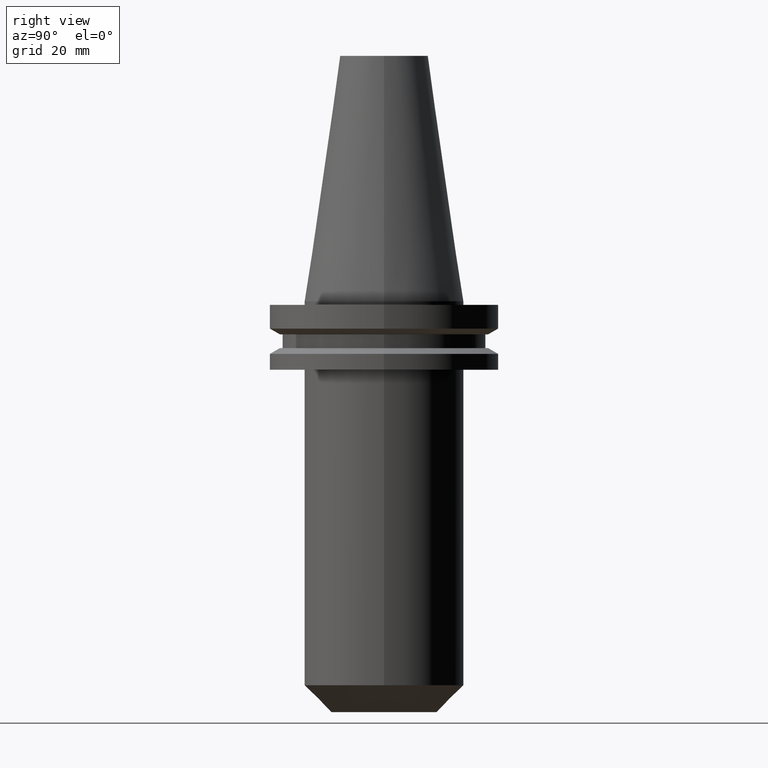
[diagram: clean part render]
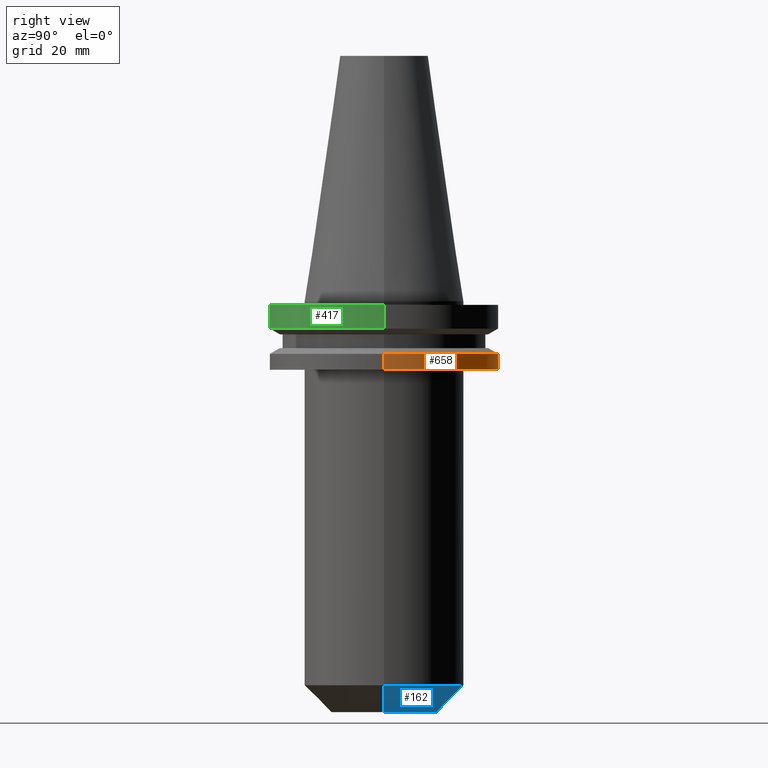
[diagram: same view with three faces highlighted in distinct colors, each labeled with its STEP entity id]
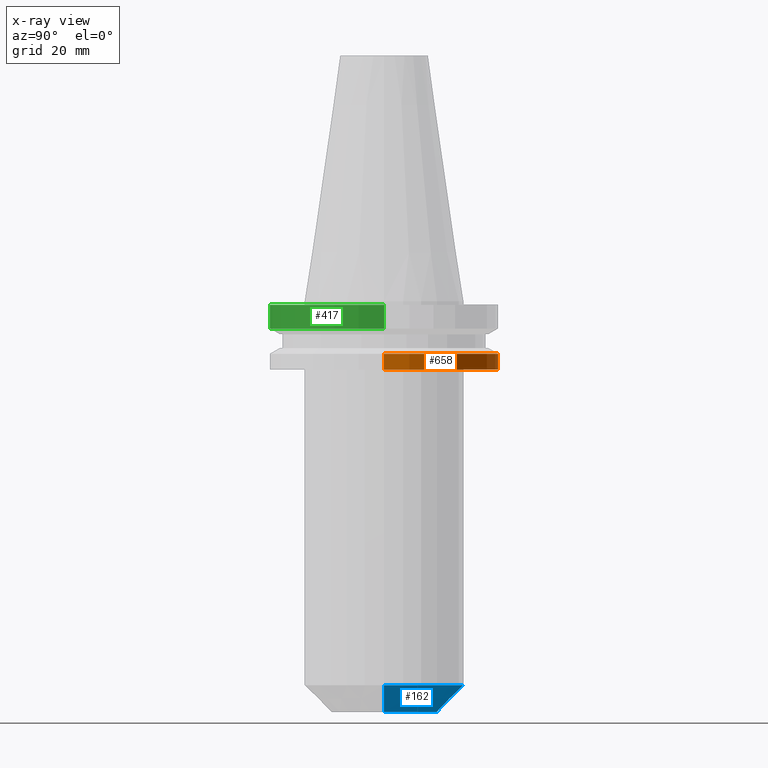
[diagram: x-ray of the same camera — body ghosted, the three highlighted faces saturated]
A machine part, right view with three faces highlighted in distinct colors.
The next image is the same camera in x-ray (body ghosted, the three faces saturated) — at least one of them is partly hidden behind the body in this view.
Their STEP definitions:

[orange] entity #658 — the highlighted cylindrical surface (partial cylindrical patch) has radius 31.75 mm, axis along (-0, -0, 1).
#1 = AXIS2_PLACEMENT_3D ( 'NONE', #332, #454, #138 ) ;
#34 = EDGE_CURVE ( 'NONE', #694, #284, #198, .T. ) ;
#66 = VECTOR ( 'NONE', #85, 1000.000000000000000 ) ;
#78 = AXIS2_PLACEMENT_3D ( 'NONE', #149, #204, #718 ) ;
#85 = DIRECTION ( 'NONE',  ( -0.000000000000000000, -0.000000000000000000, 1.000000000000000000 ) ) ;
#88 = CIRCLE ( 'NONE', #1, 31.75000000000000000 ) ;
#94 = CARTESIAN_POINT ( 'NONE',  ( -31.75000000000000000, 3.888253587292846476E-15, -14.65472339340266572 ) ) ;
#133 = DIRECTION ( 'NONE',  ( -0.000000000000000000, -0.000000000000000000, 1.000000000000000000 ) ) ;
#138 = DIRECTION ( 'NONE',  ( 1.000000000000000000, 0.000000000000000000, 0.000000000000000000 ) ) ;
#147 = VERTEX_POINT ( 'NONE', #691 ) ;
#149 = CARTESIAN_POINT ( 'NONE',  ( 0.000000000000000000, 0.000000000000000000, -19.04999999999999716 ) ) ;
#188 = FACE_OUTER_BOUND ( 'NONE', #488, .T. ) ;
#189 = CARTESIAN_POINT ( 'NONE',  ( -31.74999999999999289, 3.888253587292845687E-15, -19.04999999999999716 ) ) ;
#195 = DIRECTION ( 'NONE',  ( 1.000000000000000000, 0.000000000000000000, 0.000000000000000000 ) ) ;
#198 = CIRCLE ( 'NONE', #78, 31.74999999999999289 ) ;
#204 = DIRECTION ( 'NONE',  ( -0.000000000000000000, -0.000000000000000000, 1.000000000000000000 ) ) ;
#225 = VECTOR ( 'NONE', #133, 1000.000000000000000 ) ;
#254 = CARTESIAN_POINT ( 'NONE',  ( 31.74999999999999289, 0.000000000000000000, -19.04999999999999716 ) ) ;
#256 = CYLINDRICAL_SURFACE ( 'NONE', #259, 31.75000000000000000 ) ;
#259 = AXIS2_PLACEMENT_3D ( 'NONE', #771, #675, #195 ) ;
#284 = VERTEX_POINT ( 'NONE', #189 ) ;
#332 = CARTESIAN_POINT ( 'NONE',  ( 0.000000000000000000, 0.000000000000000000, -14.65472339340266572 ) ) ;
#368 = VERTEX_POINT ( 'NONE', #94 ) ;
#405 = EDGE_CURVE ( 'NONE', #147, #368, #88, .T. ) ;
#432 = EDGE_CURVE ( 'NONE', #694, #147, #583, .T. ) ;
#440 = CARTESIAN_POINT ( 'NONE',  ( 31.75000000000000000, 0.000000000000000000, 68.25000000000000000 ) ) ;
#454 = DIRECTION ( 'NONE',  ( -0.000000000000000000, -0.000000000000000000, 1.000000000000000000 ) ) ;
#471 = ORIENTED_EDGE ( 'NONE', *, *, #432, .F. ) ;
#488 = EDGE_LOOP ( 'NONE', ( #533, #768, #738, #471 ) ) ;
#533 = ORIENTED_EDGE ( 'NONE', *, *, #34, .T. ) ;
#549 = CARTESIAN_POINT ( 'NONE',  ( -31.75000000000000000, 3.888253587292846476E-15, 68.25000000000000000 ) ) ;
#554 = LINE ( 'NONE', #549, #225 ) ;
#583 = LINE ( 'NONE', #440, #66 ) ;
#658 = ADVANCED_FACE ( 'NONE', ( #188 ), #256, .T. ) ;
#675 = DIRECTION ( 'NONE',  ( -0.000000000000000000, -0.000000000000000000, 1.000000000000000000 ) ) ;
#691 = CARTESIAN_POINT ( 'NONE',  ( 31.75000000000000000, 0.000000000000000000, -14.65472339340266572 ) ) ;
#694 = VERTEX_POINT ( 'NONE', #254 ) ;
#718 = DIRECTION ( 'NONE',  ( 1.000000000000000000, 0.000000000000000000, 0.000000000000000000 ) ) ;
#725 = EDGE_CURVE ( 'NONE', #284, #368, #554, .T. ) ;
#738 = ORIENTED_EDGE ( 'NONE', *, *, #405, .F. ) ;
#768 = ORIENTED_EDGE ( 'NONE', *, *, #725, .T. ) ;
#771 = CARTESIAN_POINT ( 'NONE',  ( 0.000000000000000000, 0.000000000000000000, 68.25000000000000000 ) ) ;

[blue] entity #162 — the highlighted conical surface has half-angle 45 deg.
#50 = CARTESIAN_POINT ( 'NONE',  ( 14.72499999999998721, 0.000000000000000000, -114.2999999999999829 ) ) ;
#82 = DIRECTION ( 'NONE',  ( -0.000000000000000000, -0.000000000000000000, 1.000000000000000000 ) ) ;
#100 = FACE_OUTER_BOUND ( 'NONE', #186, .T. ) ;
#107 = DIRECTION ( 'NONE',  ( 1.000000000000000000, 0.000000000000000000, 0.000000000000000000 ) ) ;
#119 = CIRCLE ( 'NONE', #713, 14.72499999999998721 ) ;
#130 = CARTESIAN_POINT ( 'NONE',  ( -14.72499999999998721, 1.803292411744476082E-15, -114.2999999999999829 ) ) ;
#162 = ADVANCED_FACE ( 'NONE', ( #100 ), #504, .T. ) ;
#179 = ORIENTED_EDGE ( 'NONE', *, *, #290, .T. ) ;
#186 = EDGE_LOOP ( 'NONE', ( #670, #179, #711, #190 ) ) ;
#190 = ORIENTED_EDGE ( 'NONE', *, *, #532, .F. ) ;
#196 = VECTOR ( 'NONE', #353, 1000.000000000000000 ) ;
#209 = EDGE_CURVE ( 'NONE', #314, #544, #565, .T. ) ;
#210 = VECTOR ( 'NONE', #450, 1000.000000000000000 ) ;
#222 = DIRECTION ( 'NONE',  ( 1.000000000000000000, 0.000000000000000000, 0.000000000000000000 ) ) ;
#232 = CARTESIAN_POINT ( 'NONE',  ( 0.000000000000000000, 0.000000000000000000, -106.8000000000000114 ) ) ;
#265 = CARTESIAN_POINT ( 'NONE',  ( 14.72499999999998721, 0.000000000000000000, -114.2999999999999829 ) ) ;
#285 = CARTESIAN_POINT ( 'NONE',  ( 0.000000000000000000, 0.000000000000000000, -114.2999999999999829 ) ) ;
#290 = EDGE_CURVE ( 'NONE', #390, #544, #673, .T. ) ;
#314 = VERTEX_POINT ( 'NONE', #749 ) ;
#336 = EDGE_CURVE ( 'NONE', #360, #390, #119, .T. ) ;
#341 = CARTESIAN_POINT ( 'NONE',  ( 0.000000000000000000, 0.000000000000000000, -114.2999999999999829 ) ) ;
#345 = DIRECTION ( 'NONE',  ( 1.000000000000000000, 0.000000000000000000, 0.000000000000000000 ) ) ;
#353 = DIRECTION ( 'NONE',  ( 0.7071067811865492381, 0.000000000000000000, 0.7071067811865457964 ) ) ;
#360 = VERTEX_POINT ( 'NONE', #265 ) ;
#390 = VERTEX_POINT ( 'NONE', #520 ) ;
#403 = LINE ( 'NONE', #50, #196 ) ;
#407 = CARTESIAN_POINT ( 'NONE',  ( -22.22500000000000142, 2.721777511104992849E-15, -106.8000000000000114 ) ) ;
#413 = DIRECTION ( 'NONE',  ( -0.000000000000000000, -0.000000000000000000, 1.000000000000000000 ) ) ;
#435 = AXIS2_PLACEMENT_3D ( 'NONE', #285, #660, #345 ) ;
#450 = DIRECTION ( 'NONE',  ( -0.7071067811865492381, 8.659560562354953812E-17, 0.7071067811865457964 ) ) ;
#504 = CONICAL_SURFACE ( 'NONE', #435, 14.72499999999998721, 0.7853981633974507215 ) ;
#520 = CARTESIAN_POINT ( 'NONE',  ( -14.72499999999998721, 2.262534961424734465E-15, -114.2999999999999829 ) ) ;
#532 = EDGE_CURVE ( 'NONE', #360, #314, #403, .T. ) ;
#544 = VERTEX_POINT ( 'NONE', #407 ) ;
#565 = CIRCLE ( 'NONE', #592, 22.22500000000000142 ) ;
#592 = AXIS2_PLACEMENT_3D ( 'NONE', #232, #413, #107 ) ;
#660 = DIRECTION ( 'NONE',  ( -0.000000000000000000, -0.000000000000000000, 1.000000000000000000 ) ) ;
#670 = ORIENTED_EDGE ( 'NONE', *, *, #336, .T. ) ;
#673 = LINE ( 'NONE', #130, #210 ) ;
#711 = ORIENTED_EDGE ( 'NONE', *, *, #209, .F. ) ;
#713 = AXIS2_PLACEMENT_3D ( 'NONE', #341, #82, #222 ) ;
#749 = CARTESIAN_POINT ( 'NONE',  ( 22.22500000000000142, 0.000000000000000000, -106.8000000000000114 ) ) ;

[green] entity #417 — the highlighted cylindrical surface (partial cylindrical patch) has radius 31.75 mm, axis along (-0, -0, 1).
#29 = CARTESIAN_POINT ( 'NONE',  ( 0.000000000000000000, 0.000000000000000000, -7.605276606597335842 ) ) ;
#31 = CARTESIAN_POINT ( 'NONE',  ( -31.75000000000000000, 3.888253587292846476E-15, -1.000000000000000888 ) ) ;
#36 = AXIS2_PLACEMENT_3D ( 'NONE', #29, #693, #160 ) ;
#41 = DIRECTION ( 'NONE',  ( -0.000000000000000000, -0.000000000000000000, 1.000000000000000000 ) ) ;
#160 = DIRECTION ( 'NONE',  ( 1.000000000000000000, 0.000000000000000000, 0.000000000000000000 ) ) ;
#191 = CARTESIAN_POINT ( 'NONE',  ( 31.75000000000000000, 0.000000000000000000, 68.25000000000000000 ) ) ;
#192 = EDGE_CURVE ( 'NONE', #293, #615, #366, .T. ) ;
#214 = DIRECTION ( 'NONE',  ( 1.000000000000000000, 0.000000000000000000, 0.000000000000000000 ) ) ;
#229 = DIRECTION ( 'NONE',  ( 1.000000000000000000, 0.000000000000000000, 0.000000000000000000 ) ) ;
#293 = VERTEX_POINT ( 'NONE', #31 ) ;
#312 = LINE ( 'NONE', #191, #655 ) ;
#315 = DIRECTION ( 'NONE',  ( -0.000000000000000000, -0.000000000000000000, 1.000000000000000000 ) ) ;
#323 = VECTOR ( 'NONE', #472, 1000.000000000000000 ) ;
#361 = CARTESIAN_POINT ( 'NONE',  ( 31.75000000000000000, 0.000000000000000000, -1.000000000000000888 ) ) ;
#366 = CIRCLE ( 'NONE', #448, 31.75000000000000000 ) ;
#396 = CARTESIAN_POINT ( 'NONE',  ( -31.75000000000000000, 3.888253587292846476E-15, -7.605276606597335842 ) ) ;
#417 = ADVANCED_FACE ( 'NONE', ( #511 ), #569, .T. ) ;
#421 = VERTEX_POINT ( 'NONE', #396 ) ;
#439 = EDGE_CURVE ( 'NONE', #421, #452, #541, .T. ) ;
#448 = AXIS2_PLACEMENT_3D ( 'NONE', #539, #41, #229 ) ;
#452 = VERTEX_POINT ( 'NONE', #697 ) ;
#472 = DIRECTION ( 'NONE',  ( -0.000000000000000000, -0.000000000000000000, 1.000000000000000000 ) ) ;
#495 = EDGE_CURVE ( 'NONE', #421, #293, #664, .T. ) ;
#511 = FACE_OUTER_BOUND ( 'NONE', #735, .T. ) ;
#536 = ORIENTED_EDGE ( 'NONE', *, *, #707, .T. ) ;
#539 = CARTESIAN_POINT ( 'NONE',  ( 0.000000000000000000, 0.000000000000000000, -1.000000000000000888 ) ) ;
#541 = CIRCLE ( 'NONE', #36, 31.75000000000000000 ) ;
#569 = CYLINDRICAL_SURFACE ( 'NONE', #618, 31.75000000000000000 ) ;
#581 = DIRECTION ( 'NONE',  ( -0.000000000000000000, -0.000000000000000000, 1.000000000000000000 ) ) ;
#615 = VERTEX_POINT ( 'NONE', #361 ) ;
#618 = AXIS2_PLACEMENT_3D ( 'NONE', #733, #581, #214 ) ;
#644 = ORIENTED_EDGE ( 'NONE', *, *, #192, .F. ) ;
#655 = VECTOR ( 'NONE', #315, 1000.000000000000000 ) ;
#664 = LINE ( 'NONE', #710, #323 ) ;
#669 = ORIENTED_EDGE ( 'NONE', *, *, #439, .T. ) ;
#693 = DIRECTION ( 'NONE',  ( -0.000000000000000000, -0.000000000000000000, 1.000000000000000000 ) ) ;
#697 = CARTESIAN_POINT ( 'NONE',  ( 31.75000000000000000, 0.000000000000000000, -7.605276606597335842 ) ) ;
#707 = EDGE_CURVE ( 'NONE', #452, #615, #312, .T. ) ;
#710 = CARTESIAN_POINT ( 'NONE',  ( -31.75000000000000000, 3.888253587292846476E-15, 68.25000000000000000 ) ) ;
#733 = CARTESIAN_POINT ( 'NONE',  ( 0.000000000000000000, 0.000000000000000000, 68.25000000000000000 ) ) ;
#735 = EDGE_LOOP ( 'NONE', ( #750, #669, #536, #644 ) ) ;
#750 = ORIENTED_EDGE ( 'NONE', *, *, #495, .F. ) ;